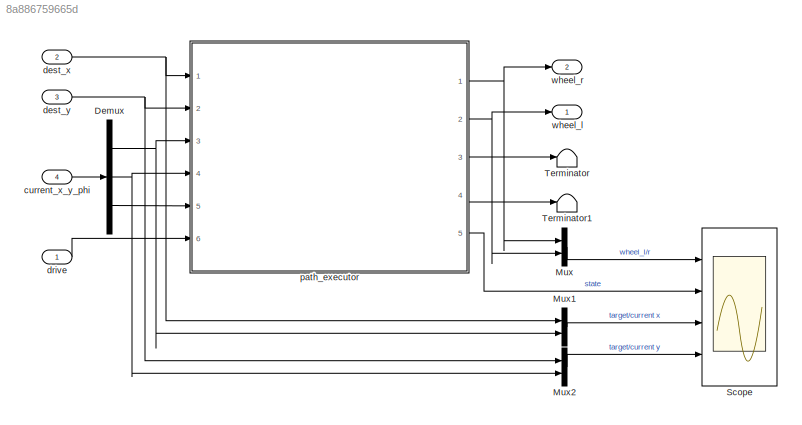
MODEL slx_8a886759665d
KIND model
CONFIG AbsTol = auto
CONFIG FixedStep = 0.01
CONFIG MaxStep = auto
CONFIG MinStep = auto
CONFIG RelTol = 1e-3
CONFIG SampleTimeConstraint = Unconstrained
CONFIG Solver = FixedStepAuto
CONFIG SolverMode = Auto
CONFIG SolverName = FixedStepAuto
CONFIG StartTime = 0.0
CONFIG StopTime = 50
BLOCK [Demux] Demux
  DisplayOption = bar
  Outputs = 3
  Ports = [1, 3]
BLOCK [Mux] Mux
  DisplayOption = bar
  Inputs = 2
  Ports = [2, 1]
BLOCK [Mux] Mux1
  DisplayOption = bar
  Inputs = 2
  Ports = [2, 1]
BLOCK [Mux] Mux2
  DisplayOption = bar
  Inputs = 2
  Ports = [2, 1]
BLOCK [Scope] Scope
  NumInputPorts = 4
  Ports = [4]
  ScopeSpecificationString = Simulink.scopes.TimeScopeBlockCfg('CurrentConfiguration', extmgr.ConfigurationSet(extmgr.Configuration('Core','General UI',true),extmgr.Configuration('Core','Source UI',true),extmgr.Configuration('Sources','WiredSimulink',true),extmgr.Configuration('Visuals','Time Domain',true,'SerializedDisplays',{struct('MinYLimReal','-1.375','MaxYLimReal','2.375','YLabelReal','','MinYLimMag','0.00000','MaxYLimM...<+3473ch>
BLOCK [Terminator] Terminator
BLOCK [Terminator] Terminator1
BLOCK [Inport] current_x_y_phi
  IconDisplay = Port number
  Port = 4
BLOCK [Inport] dest_x
  IconDisplay = Port number
  Port = 2
BLOCK [Inport] dest_y
  IconDisplay = Port number
  Port = 3
BLOCK [Inport] drive
  IconDisplay = Port number
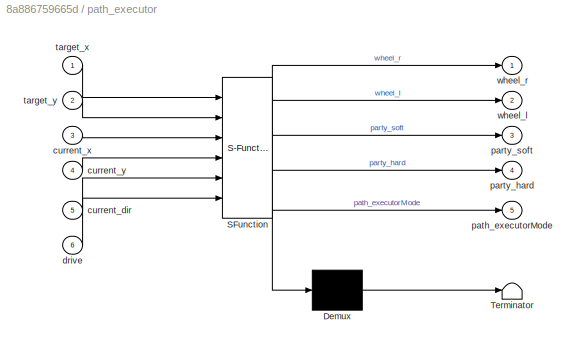
BLOCK [SubSystem] path_executor
  ErrorFcn = Stateflow.Translate.translate
  PermitHierarchicalResolution = ExplicitOnly
  Ports = [6, 5]
  RequestExecContextInheritance = off
  SFBlockType = Chart
  TreatAsAtomicUnit = on
  Variant = off
BLOCK [Demux] path_executor/ Demux 
  Outputs = 1
  Ports = [1, 1]
BLOCK [S-Function] path_executor/ SFunction 
  EnableBusSupport = on
  FunctionName = sf_sfun
  PortCounts = [6 6]
  Ports = [6, 6]
  SFunctionDeploymentMode = off
  Tag = Stateflow S-Function Path 3
BLOCK [Terminator] path_executor/ Terminator 
BLOCK [Inport] path_executor/current_dir
  IconDisplay = Port number
  Port = 5
BLOCK [Inport] path_executor/current_x
  IconDisplay = Port number
  Port = 3
BLOCK [Inport] path_executor/current_y
  IconDisplay = Port number
  Port = 4
BLOCK [Inport] path_executor/drive
  IconDisplay = Port number
  Port = 6
BLOCK [Outport] path_executor/party_hard
  IconDisplay = Port number
  Port = 4
BLOCK [Outport] path_executor/party_soft
  IconDisplay = Port number
  Port = 3
BLOCK [Outport] path_executor/path_executorMode
  IconDisplay = Port number
  Port = 5
BLOCK [Inport] path_executor/target_x
  IconDisplay = Port number
BLOCK [Inport] path_executor/target_y
  IconDisplay = Port number
  Port = 2
BLOCK [Outport] path_executor/wheel_l
  IconDisplay = Port number
  Port = 2
BLOCK [Outport] path_executor/wheel_r
  IconDisplay = Port number
BLOCK [Outport] wheel_l
  IconDisplay = Port number
BLOCK [Outport] wheel_r
  IconDisplay = Port number
  Port = 2
NET Demux:1 -> Mux1:2, path_executor:3
NET Demux:2 -> Mux2:2, path_executor:4
LINE Demux:3 -> path_executor:5
LINE Mux1:1 -> Scope:3
LINE Mux2:1 -> Scope:4
LINE Mux:1 -> Scope:1
LINE current_x_y_phi:1 -> Demux:1
NET dest_x:1 -> Mux1:1, path_executor:1
NET dest_y:1 -> Mux2:1, path_executor:2
LINE drive:1 -> path_executor:6
NET path_executor:1 -> Mux:1, wheel_r:1
NET path_executor:2 -> Mux:2, wheel_l:1
LINE path_executor:3 -> Terminator:1
LINE path_executor:4 -> Terminator1:1
LINE path_executor:5 -> Scope:2
note: NET lines group one-source signal fan-out (src -> all destinations, sorted); 1:1 wires keep LINE
CHART path_executor states=6 transitions=9
  STATE_LABEL 'Active'
  STATE_LABEL 'compute\nentry:\ninitial_x = current_x\ninitial_y = current_y\ninitial_dir = current_dir\ntarget_dir = atan2((target_y - initial_y), (target_x - initial_x))\ndir = mod(target_dir - initial_dir +pi, 2*pi)-pi;\ndir = dir / rad_per_sec;\nnormal = [-(target_y-initial_y); (target_x-initial_x)];\ndist = norm(normal);\nnormal = normal / dist;\ndist = dist / dist_per_sec;'
  STATE_LABEL 'rotate_left'
  STATE_LABEL 'drive\nentry:\nparty_soft = 1\nwheel_r = 2\nwheel_l = 2\nstray = abs([target_x-current_x, target_y-current_y]*normal);\nduring:\nstray = abs([target_x-current_x, target_y-current_y]*normal);'
  STATE_LABEL 'profit\nentry:\nparty_hard = 1\nwheel_l = 0\nwheel_r = 0'
  STATE_LABEL '[stray >= max_stray]\n{wheel_l = 0;\n wheel_r = 0;}'
  STATE_LABEL '[dir < 0]{wheel_r = -1; wheel_l = 1; dir = -dir;}'
  STATE_LABEL '[dir >= 0] {wheel_r = 1; wheel_l = -1;}'
  STATE_LABEL '[after(dir, sec)]'
  STATE_LABEL '[after(dist, sec)]'
  STATE_LABEL 'compute\nentry:\ninitial_x = current_x\ninitial_y = current_y\ninitial_dir = current_dir\ntarget_dir = atan2((target_y - initial_y), (target_x - initial_x))\ndir = mod(target_dir - initial_dir +pi, 2*pi)-pi;\ndir = dir / rad_per_sec;\nnormal = [-(target_y-initial_y); (target_x-initial_x)];\ndist = norm(normal);\nnormal = normal / dist;\ndist = dist / dist_per_sec;'
  STATE_LABEL 'rotate_left'
  STATE_LABEL 'drive\nentry:\nparty_soft = 1\nwheel_r = 2\nwheel_l = 2\nstray = abs([target_x-current_x, target_y-current_y]*normal);\nduring:\nstray = abs([target_x-current_x, target_y-current_y]*normal);'
  STATE_LABEL 'profit\nentry:\nparty_hard = 1\nwheel_l = 0\nwheel_r = 0'
  STATE_LABEL 'Inactive\n'
